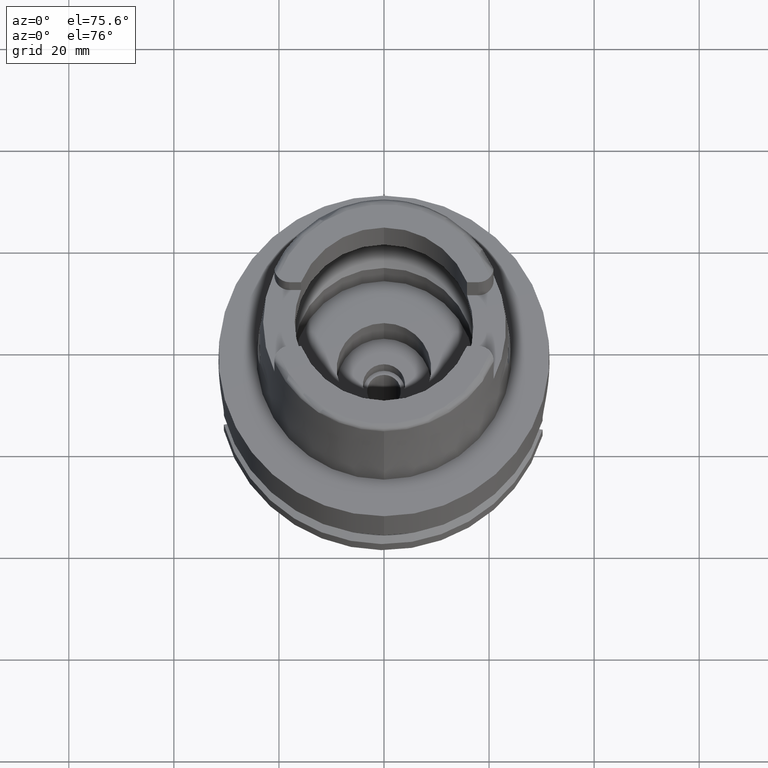
[diagram: clean part render]
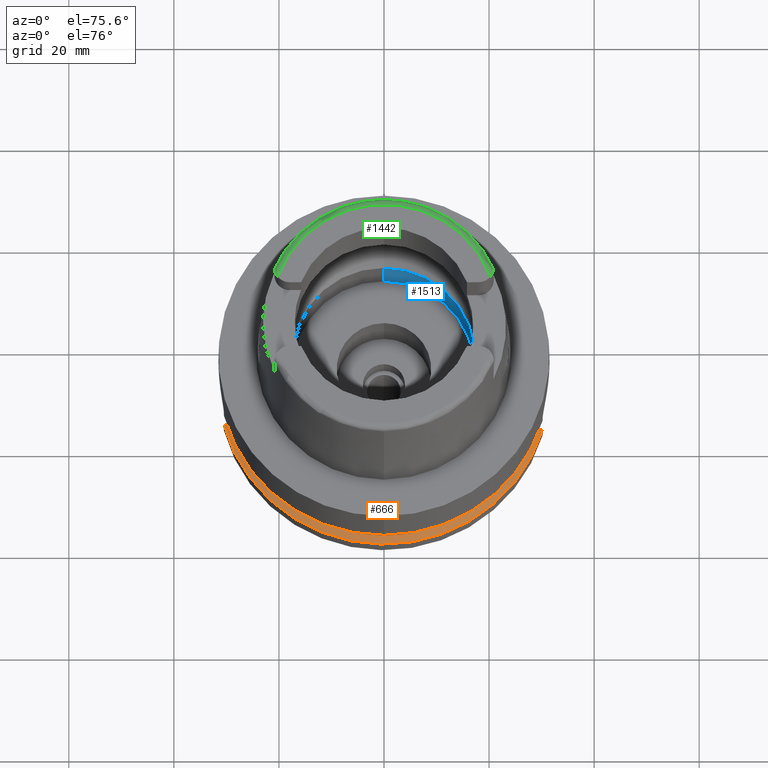
[diagram: same view with three faces highlighted in distinct colors, each labeled with its STEP entity id]
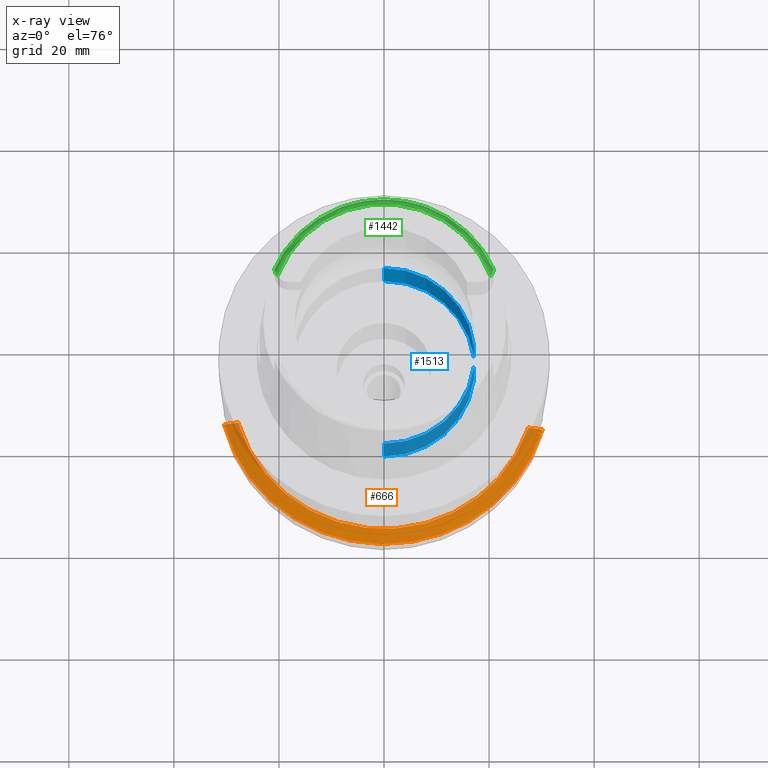
[diagram: x-ray of the same camera — body ghosted, the three highlighted faces saturated]
A machine part, auxiliary view with three faces highlighted in distinct colors.
The next image is the same camera in x-ray (body ghosted, the three faces saturated) — at least one of them is partly hidden behind the body in this view.
Their STEP definitions:

[orange] entity #666 — the highlighted conical surface has half-angle 60 deg.
#23 = CARTESIAN_POINT ( 'NONE',  ( -28.65165997763000050, -8.000000220430999676, -20.36554601773000073 ) ) ;
#384 = ORIENTED_EDGE ( 'NONE', *, *, #5507, .F. ) ;
#390 = CARTESIAN_POINT ( 'NONE',  ( 28.35092875228999887, -8.999999994551000526, -20.36410744448000187 ) ) ;
#417 = CARTESIAN_POINT ( 'NONE',  ( -30.46719550067999904, -7.999999895214999768, -21.37749812354000412 ) ) ;
#666 = ADVANCED_FACE ( 'NONE', ( #4645 ), #4735, .T. ) ;
#790 = CARTESIAN_POINT ( 'NONE',  ( 0.0000000000000000000, 0.0000000000000000000, -20.62624953738000144 ) ) ;
#805 = CARTESIAN_POINT ( 'NONE',  ( 0.0000000000000000000, 0.0000000000000000000, -19.87500000000000000 ) ) ;
#864 = EDGE_CURVE ( 'NONE', #2434, #1217, #4487, .T. ) ;
#1217 = VERTEX_POINT ( 'NONE', #5449 ) ;
#1249 = CARTESIAN_POINT ( 'NONE',  ( 29.87612147435000054, -9.000000694776000287, -21.20554642629999620 ) ) ;
#1748 = CARTESIAN_POINT ( 'NONE',  ( -28.06112407167000100, -7.999999497709999297, -20.03752483649000027 ) ) ;
#1921 = EDGE_CURVE ( 'NONE', #2434, #2095, #4718, .T. ) ;
#1940 = CARTESIAN_POINT ( 'NONE',  ( -30.46719550067999904, -7.999999895214999768, -21.37749812354000412 ) ) ;
#1986 = DIRECTION ( 'NONE',  ( 0.0000000000000000000, 0.0000000000000000000, -1.000000000000000000 ) ) ;
#2095 = VERTEX_POINT ( 'NONE', #2722 ) ;
#2124 = B_SPLINE_CURVE_WITH_KNOTS ( 'NONE', 3,
 ( #417, #4287, #3514, #23, #1748, #2559 ),
 .UNSPECIFIED., .F., .F.,
 ( 4, 1, 1, 4 ),
 ( 0.0000000000000000000, 0.3333333333333000081, 0.6666666666667000474, 1.000000000000000000 ),
 .UNSPECIFIED. ) ;
#2139 = CARTESIAN_POINT ( 'NONE',  ( 29.25977639314999834, -8.999999703796000006, -20.86495739503000024 ) ) ;
#2340 = ORIENTED_EDGE ( 'NONE', *, *, #1921, .T. ) ;
#2373 = DIRECTION ( 'NONE',  ( 0.0000000000000000000, -1.000000000000000000, 0.0000000000000000000 ) ) ;
#2434 = VERTEX_POINT ( 'NONE', #3453 ) ;
#2559 = CARTESIAN_POINT ( 'NONE',  ( -27.76816544269999909, -8.000000000000000000, -19.87500000000000000 ) ) ;
#2626 = AXIS2_PLACEMENT_3D ( 'NONE', #3770, #3343, #3688 ) ;
#2722 = CARTESIAN_POINT ( 'NONE',  ( -27.76816544269999909, -8.000000000000000000, -19.87500000000000000 ) ) ;
#3343 = DIRECTION ( 'NONE',  ( 0.0000000000000000000, 0.0000000000000000000, -1.000000000000000000 ) ) ;
#3453 = CARTESIAN_POINT ( 'NONE',  ( 27.46035054559000343, -9.000000210183999982, -19.87500000000000000 ) ) ;
#3470 = CARTESIAN_POINT ( 'NONE',  ( 27.46035054559000343, -9.000000210183999982, -19.87500000000000000 ) ) ;
#3514 = CARTESIAN_POINT ( 'NONE',  ( -29.55132669215999996, -7.999999981928000103, -20.86639286357999978 ) ) ;
#3535 = AXIS2_PLACEMENT_3D ( 'NONE', #805, #4175, #5020 ) ;
#3665 = ORIENTED_EDGE ( 'NONE', *, *, #864, .F. ) ;
#3688 = DIRECTION ( 'NONE',  ( 0.9583148474999051425, -0.2857142857143015191, 0.0000000000000000000 ) ) ;
#3719 = CIRCLE ( 'NONE', #2626, 31.49999999999999645 ) ;
#3770 = CARTESIAN_POINT ( 'NONE',  ( 0.0000000000000000000, 0.0000000000000000000, -21.37749907476000288 ) ) ;
#4175 = DIRECTION ( 'NONE',  ( 0.0000000000000000000, 0.0000000000000000000, -1.000000000000000000 ) ) ;
#4287 = CARTESIAN_POINT ( 'NONE',  ( -30.16036204026000078, -7.999999895214999768, -21.20615605053000152 ) ) ;
#4487 = B_SPLINE_CURVE_WITH_KNOTS ( 'NONE', 3,
 ( #3470, #5190, #390, #2139, #1249, #4747 ),
 .UNSPECIFIED., .F., .F.,
 ( 4, 1, 1, 4 ),
 ( 0.0000000000000000000, 0.3333333333333000081, 0.6666666666667000474, 1.000000000000000000 ),
 .UNSPECIFIED. ) ;
#4573 = VERTEX_POINT ( 'NONE', #1940 ) ;
#4645 = FACE_OUTER_BOUND ( 'NONE', #4829, .T. ) ;
#4718 = CIRCLE ( 'NONE', #3535, 28.89759526419000224 ) ;
#4735 = CONICAL_SURFACE ( 'NONE', #5460, 30.19879763209999979, 1.047197551196400456 ) ;
#4747 = CARTESIAN_POINT ( 'NONE',  ( 30.18691769625000276, -9.000000000000000000, -21.37749907476000288 ) ) ;
#4829 = EDGE_LOOP ( 'NONE', ( #5346, #384, #3665, #2340 ) ) ;
#5020 = DIRECTION ( 'NONE',  ( 0.0000000000000000000, -1.000000000000000000, 0.0000000000000000000 ) ) ;
#5190 = CARTESIAN_POINT ( 'NONE',  ( 27.75547467001999991, -9.000000210183999982, -20.03691552780999885 ) ) ;
#5221 = EDGE_CURVE ( 'NONE', #4573, #2095, #2124, .T. ) ;
#5346 = ORIENTED_EDGE ( 'NONE', *, *, #5221, .F. ) ;
#5449 = CARTESIAN_POINT ( 'NONE',  ( 30.18691769625000276, -9.000000000000000000, -21.37749907476000288 ) ) ;
#5460 = AXIS2_PLACEMENT_3D ( 'NONE', #790, #1986, #2373 ) ;
#5507 = EDGE_CURVE ( 'NONE', #1217, #4573, #3719, .T. ) ;

[blue] entity #1513 — the highlighted cylindrical surface (partial cylindrical patch) has radius 17.25 mm, axis along (0, 0, -1).
#120 = LINE ( 'NONE', #624, #3740 ) ;
#229 = ORIENTED_EDGE ( 'NONE', *, *, #3680, .T. ) ;
#259 = ORIENTED_EDGE ( 'NONE', *, *, #1543, .T. ) ;
#354 = DIRECTION ( 'NONE',  ( 0.0000000000000000000, 1.000000000000000000, 0.0000000000000000000 ) ) ;
#471 = VERTEX_POINT ( 'NONE', #1038 ) ;
#522 = EDGE_CURVE ( 'NONE', #4630, #3583, #120, .T. ) ;
#624 = CARTESIAN_POINT ( 'NONE',  ( 0.0000000000000000000, -17.25000000000000000, -9.950000000000001066 ) ) ;
#770 = AXIS2_PLACEMENT_3D ( 'NONE', #2959, #3498, #5171 ) ;
#850 = CARTESIAN_POINT ( 'NONE',  ( 0.0000000000000000000, 17.25000000000000000, -9.950000000000001066 ) ) ;
#1038 = CARTESIAN_POINT ( 'NONE',  ( 0.0000000000000000000, 17.25000000000000000, -9.950000000000001066 ) ) ;
#1513 = ADVANCED_FACE ( 'NONE', ( #2455 ), #3683, .F. ) ;
#1543 = EDGE_CURVE ( 'NONE', #3583, #1834, #5249, .T. ) ;
#1571 = DIRECTION ( 'NONE',  ( 0.0000000000000000000, 0.0000000000000000000, -1.000000000000000000 ) ) ;
#1576 = AXIS2_PLACEMENT_3D ( 'NONE', #3738, #1571, #5062 ) ;
#1633 = CIRCLE ( 'NONE', #2159, 17.25000000000000000 ) ;
#1834 = VERTEX_POINT ( 'NONE', #3405 ) ;
#1955 = ORIENTED_EDGE ( 'NONE', *, *, #522, .T. ) ;
#2159 = AXIS2_PLACEMENT_3D ( 'NONE', #4598, #2968, #354 ) ;
#2428 = ORIENTED_EDGE ( 'NONE', *, *, #3608, .F. ) ;
#2455 = FACE_OUTER_BOUND ( 'NONE', #4458, .T. ) ;
#2518 = VECTOR ( 'NONE', #5070, 1000.000000000000000 ) ;
#2920 = CARTESIAN_POINT ( 'NONE',  ( 0.0000000000000000000, -17.25000000000000000, -2.131628207279999844E-14 ) ) ;
#2959 = CARTESIAN_POINT ( 'NONE',  ( 0.0000000000000000000, 0.0000000000000000000, -2.131628207279999844E-14 ) ) ;
#2968 = DIRECTION ( 'NONE',  ( 0.0000000000000000000, 0.0000000000000000000, -1.000000000000000000 ) ) ;
#3204 = DIRECTION ( 'NONE',  ( 0.0000000000000000000, 0.0000000000000000000, 1.000000000000000000 ) ) ;
#3405 = CARTESIAN_POINT ( 'NONE',  ( 0.0000000000000000000, 17.25000000000000000, -2.131628207279999844E-14 ) ) ;
#3498 = DIRECTION ( 'NONE',  ( 0.0000000000000000000, 0.0000000000000000000, 1.000000000000000000 ) ) ;
#3583 = VERTEX_POINT ( 'NONE', #2920 ) ;
#3608 = EDGE_CURVE ( 'NONE', #471, #1834, #4202, .T. ) ;
#3680 = EDGE_CURVE ( 'NONE', #471, #4630, #1633, .T. ) ;
#3683 = CYLINDRICAL_SURFACE ( 'NONE', #1576, 17.25000000000000000 ) ;
#3738 = CARTESIAN_POINT ( 'NONE',  ( 0.0000000000000000000, 0.0000000000000000000, 37.15000000000000568 ) ) ;
#3740 = VECTOR ( 'NONE', #3204, 1000.000000000000000 ) ;
#4202 = LINE ( 'NONE', #850, #2518 ) ;
#4301 = CARTESIAN_POINT ( 'NONE',  ( 0.0000000000000000000, -17.25000000000000000, -9.950000000000001066 ) ) ;
#4458 = EDGE_LOOP ( 'NONE', ( #229, #1955, #259, #2428 ) ) ;
#4598 = CARTESIAN_POINT ( 'NONE',  ( 0.0000000000000000000, 0.0000000000000000000, -9.950000000000001066 ) ) ;
#4630 = VERTEX_POINT ( 'NONE', #4301 ) ;
#5062 = DIRECTION ( 'NONE',  ( 0.0000000000000000000, -1.000000000000000000, 0.0000000000000000000 ) ) ;
#5070 = DIRECTION ( 'NONE',  ( 0.0000000000000000000, 0.0000000000000000000, 1.000000000000000000 ) ) ;
#5171 = DIRECTION ( 'NONE',  ( 0.0000000000000000000, -1.000000000000000000, 0.0000000000000000000 ) ) ;
#5249 = CIRCLE ( 'NONE', #770, 17.25000000000000000 ) ;

[green] entity #1442 — the highlighted toroidal blend (fillet) surface has major radius 21.5735 mm and minor (blend) radius 1.2 mm.
#36 = DIRECTION ( 'NONE',  ( -0.9164655183265837390, 0.4001136759951928745, 0.0000000000000000000 ) ) ;
#231 = CARTESIAN_POINT ( 'NONE',  ( -20.84248467327786969, 8.748172503525207588, 31.41870375748063182 ) ) ;
#260 = CARTESIAN_POINT ( 'NONE',  ( -20.50095141909332241, 7.738177567404117774, 31.95241218444611775 ) ) ;
#273 = CARTESIAN_POINT ( 'NONE',  ( 20.75962881835868146, 8.360254251696886740, 31.68880140601152462 ) ) ;
#574 = AXIS2_PLACEMENT_3D ( 'NONE', #2641, #3431, #1697 ) ;
#642 = CARTESIAN_POINT ( 'NONE',  ( -20.59327103282709004, 7.917480089902895202, 31.89627343328487541 ) ) ;
#659 = CARTESIAN_POINT ( 'NONE',  ( 20.66043568231586036, 8.071399213117315341, 31.83486621594638066 ) ) ;
#667 = ORIENTED_EDGE ( 'NONE', *, *, #5262, .F. ) ;
#671 = CARTESIAN_POINT ( 'NONE',  ( -20.83234998707372654, 8.679338195231578013, 31.47524918511172842 ) ) ;
#672 = CIRCLE ( 'NONE', #1915, 21.57348458609000375 ) ;
#699 = CARTESIAN_POINT ( 'NONE',  ( -20.79470538594800288, 8.495364608955132013, 31.60562426173796524 ) ) ;
#722 = CARTESIAN_POINT ( 'NONE',  ( -20.86091988380529472, 8.919971726713754379, 31.24610983469213110 ) ) ;
#778 = VERTEX_POINT ( 'NONE', #2759 ) ;
#803 = DIRECTION ( 'NONE',  ( -0.0009289215035770252184, -0.9999995685523270783, 0.0000000000000000000 ) ) ;
#837 = CARTESIAN_POINT ( 'NONE',  ( -20.26871835884000106, 7.388795116669998997, 32.00000000000000000 ) ) ;
#847 = CIRCLE ( 'NONE', #574, 22.77198729362000051 ) ;
#870 = VERTEX_POINT ( 'NONE', #837 ) ;
#920 = CIRCLE ( 'NONE', #3978, 22.77198729362000407 ) ;
#1080 = CARTESIAN_POINT ( 'NONE',  ( -20.73675845259403516, 8.284025998134547208, 31.73142562351915430 ) ) ;
#1097 = CARTESIAN_POINT ( 'NONE',  ( 20.75679486914388860, 8.350352098577111803, 31.69451662235955069 ) ) ;
#1138 = CARTESIAN_POINT ( 'NONE',  ( -20.26871835884000106, 7.388795116669998997, 32.00000000000000000 ) ) ;
#1160 = CARTESIAN_POINT ( 'NONE',  ( 0.0000000000000000000, 22.77198729362000051, 30.85992712280000205 ) ) ;
#1257 = CARTESIAN_POINT ( 'NONE',  ( 20.86974092012000170, 9.111384045666000020, 30.85992712280000205 ) ) ;
#1356 = CARTESIAN_POINT ( 'NONE',  ( 20.84176050136753489, 8.746179893545061645, 31.41849180054708057 ) ) ;
#1414 = CARTESIAN_POINT ( 'NONE',  ( 20.86130815856597209, 8.922080393297452616, 31.24625966189476145 ) ) ;
#1442 = ADVANCED_FACE ( 'NONE', ( #4284 ), #3811, .T. ) ;
#1483 = CARTESIAN_POINT ( 'NONE',  ( -20.72409694139581759, 8.244197663322292868, 31.75277983535461956 ) ) ;
#1506 = CARTESIAN_POINT ( 'NONE',  ( -20.63261770692031405, 8.004932251447124614, 31.86266048008067031 ) ) ;
#1522 = CARTESIAN_POINT ( 'NONE',  ( 20.64452653711106933, 8.032798316843441810, 31.85127630348784322 ) ) ;
#1531 = CARTESIAN_POINT ( 'NONE',  ( -20.85334242704406194, 8.839188670506461065, 31.33284174312980142 ) ) ;
#1596 = ORIENTED_EDGE ( 'NONE', *, *, #5052, .T. ) ;
#1607 = B_SPLINE_CURVE_WITH_KNOTS ( 'NONE', 3,
 ( #1138, #4493, #2443, #260, #3646, #3275, #642, #1957, #2334, #1506, #2758, #2003, #1483, #1080, #4066, #5396, #5001, #3615, #699, #1898, #3727, #2840, #2812, #671, #231, #1531, #5024, #722, #5453, #1930, #4919, #2413 ),
 .UNSPECIFIED., .F., .F.,
 ( 4, 2, 2, 1, 2, 2, 1, 1, 2, 2, 2, 1, 2, 2, 2, 2, 2, 4 ),
 ( 0.0000000000000000000, 0.1249999999999615863, 0.1874999999999432676, 0.2187499999999344413, 0.2343749999999324152, 0.2499999999999303890, 0.3124999999999252265, 0.3437499999999231726, 0.3593749999999212852, 0.3749999999999194533, 0.4374999999999169553, 0.4687499999999165667, 0.4843749999999166778, 0.4999999999999168443, 0.6249999999999300559, 0.6874999999999366063, 0.7499999999999472644, 1.000000000000000000 ),
 .UNSPECIFIED. ) ;
#1697 = DIRECTION ( 'NONE',  ( 0.0000000000000000000, 1.000000000000000000, 0.0000000000000000000 ) ) ;
#1749 = CARTESIAN_POINT ( 'NONE',  ( 20.86974092012000170, 9.111384045666000020, 30.85992712280000205 ) ) ;
#1861 = CARTESIAN_POINT ( 'NONE',  ( 20.82117511483225769, 8.621854786063344989, 31.51710009595523587 ) ) ;
#1887 = CARTESIAN_POINT ( 'NONE',  ( 20.67643188278520228, 8.111291756052880331, 31.81741482084855832 ) ) ;
#1898 = CARTESIAN_POINT ( 'NONE',  ( -20.80222552978594308, 8.528196985443063483, 31.58384401530915753 ) ) ;
#1915 = AXIS2_PLACEMENT_3D ( 'NONE', #3380, #4664, #4117 ) ;
#1930 = CARTESIAN_POINT ( 'NONE',  ( -20.86947945962558393, 9.049881781675367165, 31.07662893873636278 ) ) ;
#1948 = CARTESIAN_POINT ( 'NONE',  ( 20.81957924228601797, 8.613347548248855290, 31.52340741052019624 ) ) ;
#1957 = CARTESIAN_POINT ( 'NONE',  ( -20.61287623177943118, 7.960391359001995681, 31.88010101159273546 ) ) ;
#1972 = CARTESIAN_POINT ( 'NONE',  ( 20.26871835884000106, 7.388795116668999796, 32.00000000000000000 ) ) ;
#2003 = CARTESIAN_POINT ( 'NONE',  ( -20.69226939225200468, 8.151144914115310058, 31.79986963569436753 ) ) ;
#2093 = EDGE_CURVE ( 'NONE', #4669, #4496, #3837, .T. ) ;
#2172 = ORIENTED_EDGE ( 'NONE', *, *, #3164, .F. ) ;
#2334 = CARTESIAN_POINT ( 'NONE',  ( -20.62574011553485676, 7.989171636575441049, 31.86894761732229853 ) ) ;
#2351 = CARTESIAN_POINT ( 'NONE',  ( 20.41216730585300354, 7.574395186371555511, 32.00000000000000000 ) ) ;
#2381 = CARTESIAN_POINT ( 'NONE',  ( 20.82459119405498527, 8.640507448105905652, 31.50309154760962116 ) ) ;
#2413 = CARTESIAN_POINT ( 'NONE',  ( -20.86974110883999955, 9.111383541174999934, 30.85992743285000017 ) ) ;
#2443 = CARTESIAN_POINT ( 'NONE',  ( -20.40792224576318148, 7.580627369183948083, 31.98810304611153654 ) ) ;
#2606 = CARTESIAN_POINT ( 'NONE',  ( 20.86839841667074325, 9.053205861683123246, 31.04974976831375599 ) ) ;
#2641 = CARTESIAN_POINT ( 'NONE',  ( 0.0000000000000000000, 0.0000000000000000000, 30.85992712280000205 ) ) ;
#2758 = CARTESIAN_POINT ( 'NONE',  ( -20.66098970329853657, 8.071320295848366300, 31.83554084636897841 ) ) ;
#2759 = CARTESIAN_POINT ( 'NONE',  ( -20.86974110883999955, 9.111383541174999934, 30.85992743285000017 ) ) ;
#2812 = CARTESIAN_POINT ( 'NONE',  ( -20.81568876275640534, 8.593243362613318226, 31.53807988651853478 ) ) ;
#2840 = CARTESIAN_POINT ( 'NONE',  ( -20.81339581540947137, 8.581709167090084023, 31.54637501073020900 ) ) ;
#2993 = DIRECTION ( 'NONE',  ( 0.0000000000000000000, 0.0000000000000000000, -1.000000000000000000 ) ) ;
#3122 = CARTESIAN_POINT ( 'NONE',  ( 20.83382636247885955, 8.694638847776234414, 31.46090459169371911 ) ) ;
#3148 = CARTESIAN_POINT ( 'NONE',  ( 20.78400639388914328, 8.451109407922478667, 31.63407235421447083 ) ) ;
#3164 = EDGE_CURVE ( 'NONE', #870, #778, #1607, .T. ) ;
#3182 = CARTESIAN_POINT ( 'NONE',  ( 20.73731040765902023, 8.284127405039598102, 31.73204755809619471 ) ) ;
#3217 = VERTEX_POINT ( 'NONE', #1160 ) ;
#3235 = CARTESIAN_POINT ( 'NONE',  ( 20.53874229073553437, 7.785265070956997491, 31.95240841711610713 ) ) ;
#3264 = CARTESIAN_POINT ( 'NONE',  ( 20.76607232047233964, 8.383211495943596603, 31.67537517609221709 ) ) ;
#3275 = CARTESIAN_POINT ( 'NONE',  ( -20.57276041380005083, 7.875356994586574899, 31.91077284583646190 ) ) ;
#3282 = AXIS2_PLACEMENT_3D ( 'NONE', #4810, #4660, #803 ) ;
#3333 = ORIENTED_EDGE ( 'NONE', *, *, #4584, .F. ) ;
#3367 = CARTESIAN_POINT ( 'NONE',  ( 0.0000000000000000000, 0.0000000000000000000, 30.85992712280000205 ) ) ;
#3380 = CARTESIAN_POINT ( 'NONE',  ( 0.0000000000000000000, 0.0000000000000000000, 32.00000000000000000 ) ) ;
#3431 = DIRECTION ( 'NONE',  ( 0.0000000000000000000, 0.0000000000000000000, -1.000000000000000000 ) ) ;
#3484 = CARTESIAN_POINT ( 'NONE',  ( 20.84610926132162589, 8.778552440481009356, 31.39004454151158541 ) ) ;
#3546 = CARTESIAN_POINT ( 'NONE',  ( 20.86965375660295763, 9.104870443090788967, 30.91364877694325841 ) ) ;
#3615 = CARTESIAN_POINT ( 'NONE',  ( -20.77863214353421739, 8.428882841179941465, 31.64835986480900232 ) ) ;
#3633 = CARTESIAN_POINT ( 'NONE',  ( 20.80007794100184881, 8.517591017895492556, 31.59133574736901906 ) ) ;
#3646 = CARTESIAN_POINT ( 'NONE',  ( -20.53059238141369036, 7.792187444132765428, 31.93754099208551978 ) ) ;
#3687 = CARTESIAN_POINT ( 'NONE',  ( 20.64954228288481985, 8.044811673786995243, 31.84624062466058447 ) ) ;
#3727 = CARTESIAN_POINT ( 'NONE',  ( -20.80902103107436929, 8.560390953595911512, 31.56144510154044980 ) ) ;
#3811 = TOROIDAL_SURFACE ( 'NONE', #3282, 21.57348458609000019, 1.199999999999999956 ) ;
#3837 = B_SPLINE_CURVE_WITH_KNOTS ( 'NONE', 3,
 ( #1749, #3546, #5184, #2606, #5207, #5272, #4338, #1414, #4372, #3484, #1356, #3122, #4847, #2381, #1861, #1948, #4108, #3633, #3148, #4961, #3264, #273, #1097, #3182, #4511, #1887, #659, #3687, #1522, #3235, #2351, #1972 ),
 .UNSPECIFIED., .F., .F.,
 ( 4, 2, 2, 2, 2, 2, 1, 2, 2, 2, 1, 2, 2, 1, 1, 2, 2, 4 ),
 ( 0.0000000000000000000, 0.1250000000000114631, 0.1875000000000205391, 0.2500000000000295874, 0.3750000000000477396, 0.4375000000000570100, 0.4687500000000585643, 0.4843750000000556222, 0.5000000000000526246, 0.5625000000000440759, 0.5937500000000414113, 0.6093750000000401901, 0.6250000000000389688, 0.6875000000000383027, 0.7187500000000379696, 0.7343750000000370814, 0.7500000000000360822, 1.000000000000000000 ),
 .UNSPECIFIED. ) ;
#3978 = AXIS2_PLACEMENT_3D ( 'NONE', #3367, #2993, #36 ) ;
#3984 = ORIENTED_EDGE ( 'NONE', *, *, #2093, .F. ) ;
#4066 = CARTESIAN_POINT ( 'NONE',  ( -20.74498429022380819, 8.310562968756052271, 31.71692884477711516 ) ) ;
#4100 = EDGE_LOOP ( 'NONE', ( #2172, #1596, #3984, #667, #3333 ) ) ;
#4108 = CARTESIAN_POINT ( 'NONE',  ( 20.80941266251504729, 8.560809949173641797, 31.56175226854421467 ) ) ;
#4117 = DIRECTION ( 'NONE',  ( 0.0009289215035771249650, 0.9999995685523269673, 0.0000000000000000000 ) ) ;
#4284 = FACE_OUTER_BOUND ( 'NONE', #4100, .T. ) ;
#4338 = CARTESIAN_POINT ( 'NONE',  ( 20.86554310421545821, 8.988317199614035857, 31.15833691072261402 ) ) ;
#4372 = CARTESIAN_POINT ( 'NONE',  ( 20.85696498673094013, 8.869562175914278868, 31.30418656959200874 ) ) ;
#4493 = CARTESIAN_POINT ( 'NONE',  ( -20.34043149474682721, 7.481580482471303029, 32.00000000000000000 ) ) ;
#4496 = VERTEX_POINT ( 'NONE', #4535 ) ;
#4511 = CARTESIAN_POINT ( 'NONE',  ( 20.71137145563871229, 8.204407896461848537, 31.77396642476836064 ) ) ;
#4535 = CARTESIAN_POINT ( 'NONE',  ( 20.26871835884000106, 7.388795116668999796, 32.00000000000000000 ) ) ;
#4584 = EDGE_CURVE ( 'NONE', #778, #3217, #920, .T. ) ;
#4660 = DIRECTION ( 'NONE',  ( 0.0000000000000000000, 0.0000000000000000000, -1.000000000000000000 ) ) ;
#4664 = DIRECTION ( 'NONE',  ( 0.0000000000000000000, 0.0000000000000000000, -1.000000000000000000 ) ) ;
#4669 = VERTEX_POINT ( 'NONE', #1257 ) ;
#4810 = CARTESIAN_POINT ( 'NONE',  ( 0.0000000000000000000, 0.0000000000000000000, 30.80000000000000071 ) ) ;
#4847 = CARTESIAN_POINT ( 'NONE',  ( 20.82950595600309285, 8.668123182715110175, 31.48204646291541309 ) ) ;
#4919 = CARTESIAN_POINT ( 'NONE',  ( -20.86956637921452895, 9.098354545687046269, 30.96738786966303891 ) ) ;
#4961 = CARTESIAN_POINT ( 'NONE',  ( 20.77545310863051498, 8.417455750018616456, 31.65503100478927934 ) ) ;
#5001 = CARTESIAN_POINT ( 'NONE',  ( -20.76653959654608883, 8.383470947809616547, 31.67575041380763068 ) ) ;
#5024 = CARTESIAN_POINT ( 'NONE',  ( -20.85623168395286697, 8.867493505128917874, 31.30404709286214171 ) ) ;
#5052 = EDGE_CURVE ( 'NONE', #870, #4496, #672, .T. ) ;
#5184 = CARTESIAN_POINT ( 'NONE',  ( 20.86946642000694041, 9.089507543669469669, 30.96782011327707451 ) ) ;
#5207 = CARTESIAN_POINT ( 'NONE',  ( 20.86790360307099945, 9.038896007748085992, 31.07717176174862317 ) ) ;
#5262 = EDGE_CURVE ( 'NONE', #3217, #4669, #847, .T. ) ;
#5272 = CARTESIAN_POINT ( 'NONE',  ( 20.86643864316265606, 9.005868193017834145, 31.13223996546366479 ) ) ;
#5396 = CARTESIAN_POINT ( 'NONE',  ( -20.74947580607644682, 8.325476223436368173, 31.70861378374496908 ) ) ;
#5453 = CARTESIAN_POINT ( 'NONE',  ( -20.86279408504172395, 8.945321603601772864, 31.21540606540341045 ) ) ;